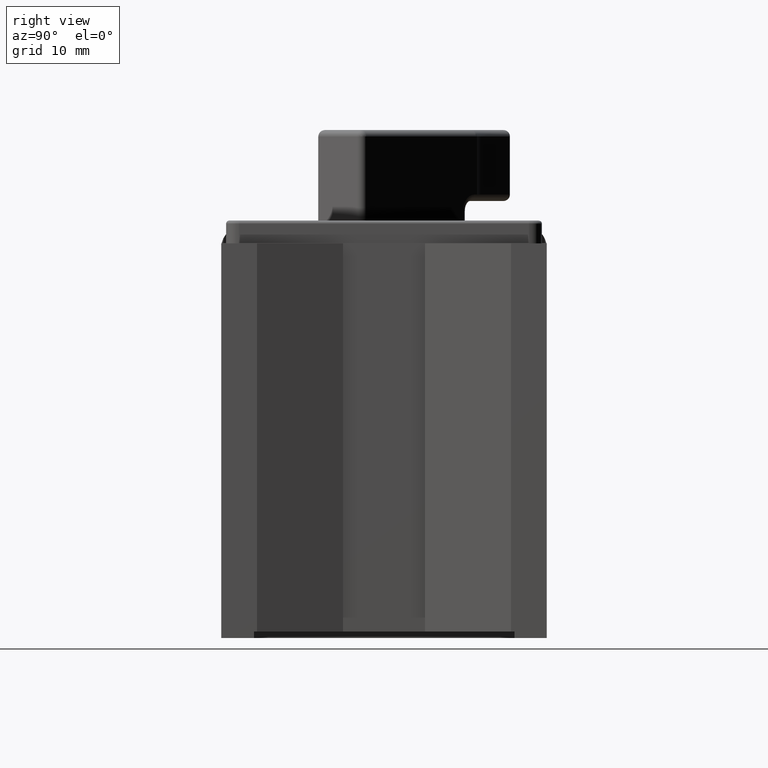
[diagram: clean part render]
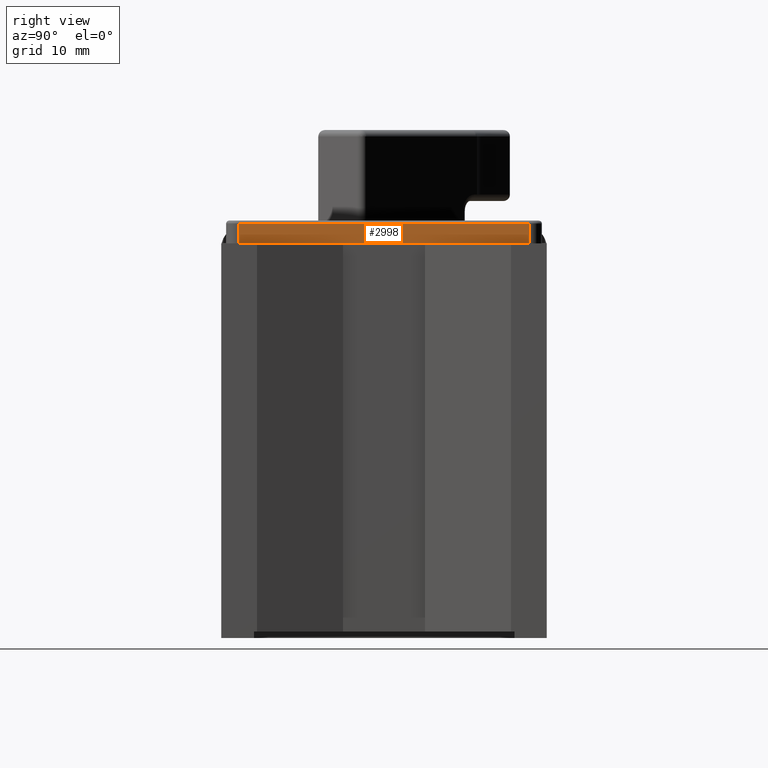
[diagram: same view with one face highlighted and labeled with its STEP entity id]
A machine part, right view. The second image highlights one B-rep face of the part: STEP entity #2998.
In plain terms, the highlighted planar face has unit normal (-1, 0, 0).
Its self-contained STEP definition (entity closure, byte-faithful):
#150 = DIRECTION ( 'NONE',  ( -1.000000000000000000, 0.0000000000000000000, 0.0000000000000000000 ) ) ;
#994 = CARTESIAN_POINT ( 'NONE',  ( 49.99999999999999300, -22.24999999999998600, 29.10000000000000100 ) ) ;
#1225 = CARTESIAN_POINT ( 'NONE',  ( 49.99999999999999300, 22.25000000000007500, 32.60000000000000100 ) ) ;
#1490 = LINE ( 'NONE', #1833, #3639 ) ;
#1833 = CARTESIAN_POINT ( 'NONE',  ( 49.99999999999999300, -22.24999999999998600, 32.60000000000000100 ) ) ;
#1908 = EDGE_CURVE ( 'NONE', #8504, #7189, #1490, .T. ) ;
#1956 = CARTESIAN_POINT ( 'NONE',  ( 49.99999999999999300, 22.25000000000007500, 29.10000000000000100 ) ) ;
#2036 = AXIS2_PLACEMENT_3D ( 'NONE', #7009, #150, #4948 ) ;
#2546 = VERTEX_POINT ( 'NONE', #1956 ) ;
#2823 = CARTESIAN_POINT ( 'NONE',  ( 49.99999999999999300, -22.24999999999998600, 32.10000000000000100 ) ) ;
#2998 = ADVANCED_FACE ( 'NONE', ( #10793 ), #10798, .F. ) ;
#3639 = VECTOR ( 'NONE', #9820, 1000.000000000000000 ) ;
#4619 = LINE ( 'NONE', #994, #9370 ) ;
#4907 = CARTESIAN_POINT ( 'NONE',  ( 49.99999999999999300, 22.25000000000007500, 32.10000000000000100 ) ) ;
#4948 = DIRECTION ( 'NONE',  ( 0.0000000000000000000, 0.0000000000000000000, 1.000000000000000000 ) ) ;
#5518 = LINE ( 'NONE', #2823, #8426 ) ;
#5794 = EDGE_CURVE ( 'NONE', #7189, #2546, #4619, .T. ) ;
#5996 = VERTEX_POINT ( 'NONE', #4907 ) ;
#6009 = ORIENTED_EDGE ( 'NONE', *, *, #5794, .T. ) ;
#6191 = ORIENTED_EDGE ( 'NONE', *, *, #7603, .F. ) ;
#6516 = VECTOR ( 'NONE', #8075, 1000.000000000000000 ) ;
#6997 = ORIENTED_EDGE ( 'NONE', *, *, #7281, .T. ) ;
#7009 = CARTESIAN_POINT ( 'NONE',  ( 49.99999999999999300, -22.24999999999998600, 32.60000000000000100 ) ) ;
#7189 = VERTEX_POINT ( 'NONE', #8325 ) ;
#7281 = EDGE_CURVE ( 'NONE', #5996, #8504, #5518, .T. ) ;
#7509 = CARTESIAN_POINT ( 'NONE',  ( 49.99999999999999300, -22.24999999999998600, 32.10000000000000100 ) ) ;
#7537 = DIRECTION ( 'NONE',  ( -0.0000000000000000000, -1.000000000000000000, -0.0000000000000000000 ) ) ;
#7603 = EDGE_CURVE ( 'NONE', #5996, #2546, #9104, .T. ) ;
#7757 = EDGE_LOOP ( 'NONE', ( #6191, #6997, #12133, #6009 ) ) ;
#8075 = DIRECTION ( 'NONE',  ( 0.0000000000000000000, 0.0000000000000000000, -1.000000000000000000 ) ) ;
#8325 = CARTESIAN_POINT ( 'NONE',  ( 49.99999999999999300, -22.24999999999998600, 29.10000000000000100 ) ) ;
#8426 = VECTOR ( 'NONE', #7537, 1000.000000000000000 ) ;
#8504 = VERTEX_POINT ( 'NONE', #7509 ) ;
#9104 = LINE ( 'NONE', #1225, #6516 ) ;
#9370 = VECTOR ( 'NONE', #10786, 1000.000000000000000 ) ;
#9820 = DIRECTION ( 'NONE',  ( 0.0000000000000000000, 0.0000000000000000000, -1.000000000000000000 ) ) ;
#10786 = DIRECTION ( 'NONE',  ( 0.0000000000000000000, 1.000000000000000000, 0.0000000000000000000 ) ) ;
#10793 = FACE_OUTER_BOUND ( 'NONE', #7757, .T. ) ;
#10798 = PLANE ( 'NONE',  #2036 ) ;
#12133 = ORIENTED_EDGE ( 'NONE', *, *, #1908, .T. ) ;